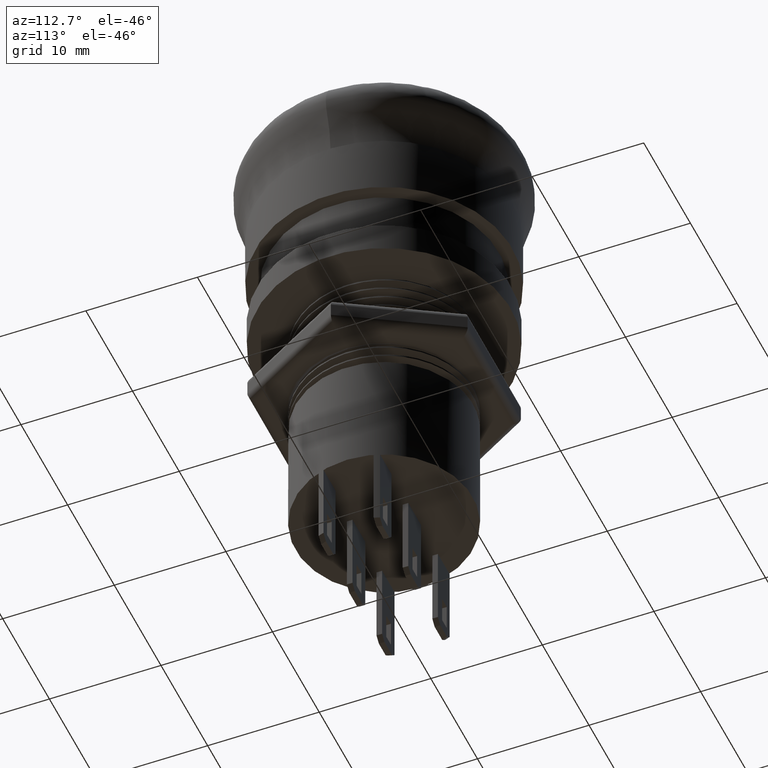
[diagram: clean part render]
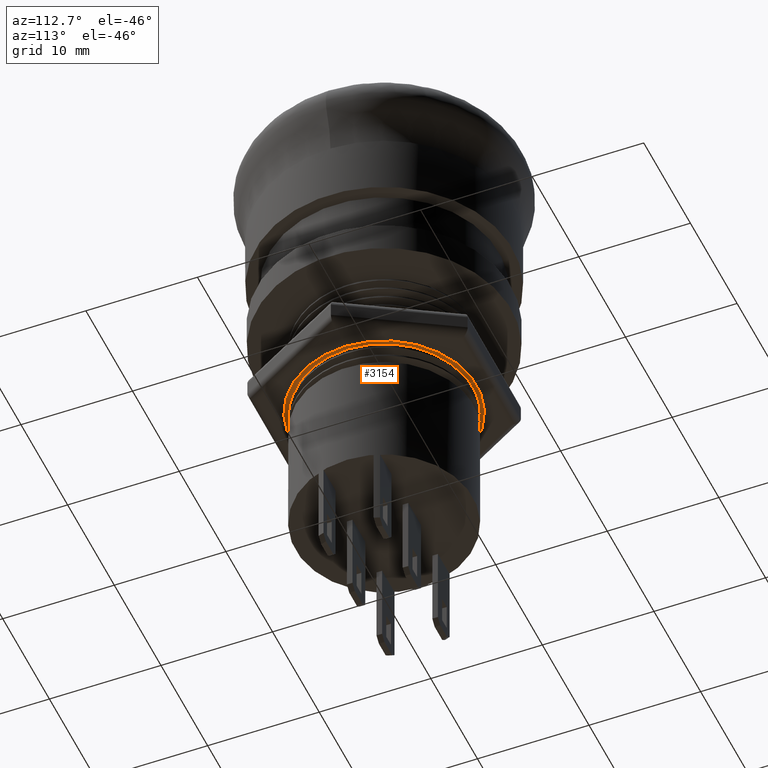
[diagram: same view with one face highlighted and labeled with its STEP entity id]
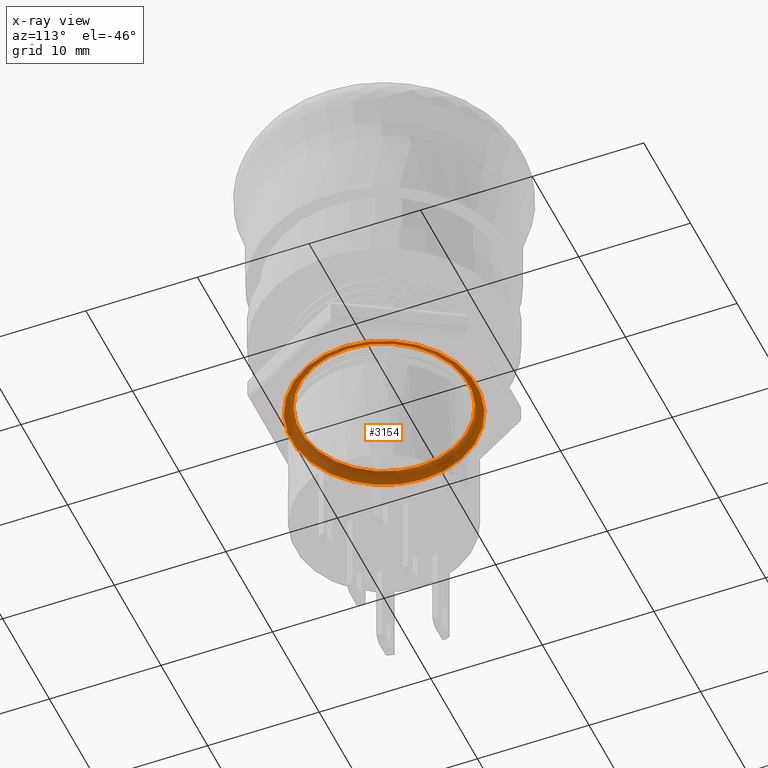
[diagram: x-ray of the same camera — body ghosted, the highlighted face saturated]
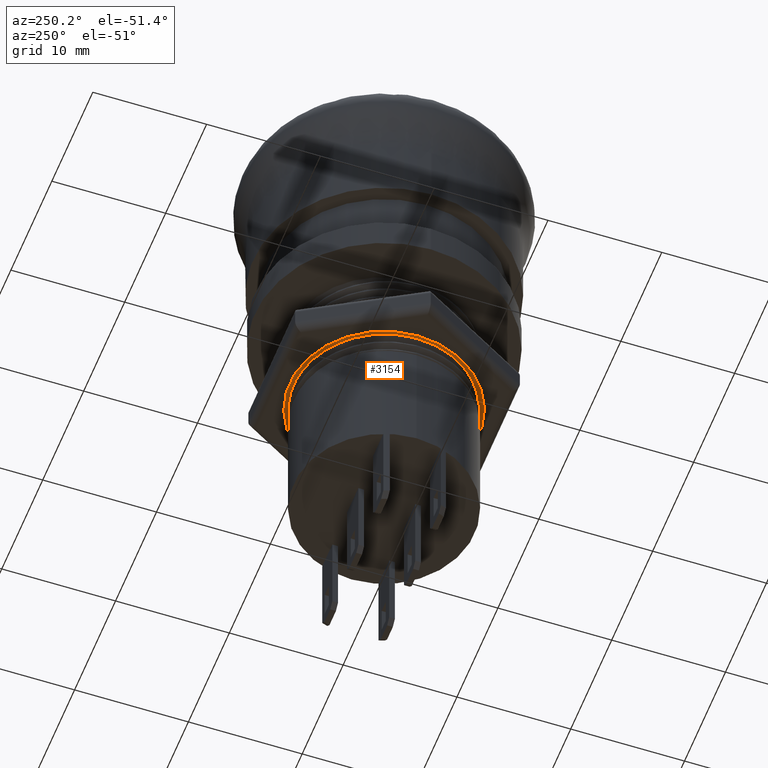
[diagram: same view with one face highlighted and labeled with its STEP entity id]
A machine part, auxiliary view. The second image highlights one B-rep face of the part: STEP entity #3154.
The next image is the same camera in x-ray: the body ghosted, the highlighted face saturated — about 64% of this face is hidden behind the body in this view.
A second angle (auxiliary view) of the same face is appended — the face is thin or edge-on in the first view.
In plain terms, the highlighted toroidal blend (fillet) surface has major radius 8.3 mm and minor (blend) radius 0.8 mm.
Its self-contained STEP definition (entity closure, byte-faithful):
#15=TOROIDAL_SURFACE('',#3405,8.3,0.8);
#179=CIRCLE('',#3404,8.3);
#180=CIRCLE('',#3406,7.5);
#181=CIRCLE('',#3407,0.8);
#182=CIRCLE('',#3408,7.5);
#395=FACE_OUTER_BOUND('',#594,.T.);
#594=EDGE_LOOP('',(#2708,#2709,#2710,#2711,#2712));
#1505=VERTEX_POINT('',#7847);
#1506=VERTEX_POINT('',#7850);
#1507=VERTEX_POINT('',#7851);
#1916=EDGE_CURVE('',#1505,#1505,#179,.T.);
#1917=EDGE_CURVE('',#1506,#1507,#180,.T.);
#1918=EDGE_CURVE('',#1507,#1505,#181,.T.);
#1919=EDGE_CURVE('',#1507,#1506,#182,.T.);
#2708=ORIENTED_EDGE('',*,*,#1917,.T.);
#2709=ORIENTED_EDGE('',*,*,#1918,.T.);
#2710=ORIENTED_EDGE('',*,*,#1916,.T.);
#2711=ORIENTED_EDGE('',*,*,#1918,.F.);
#2712=ORIENTED_EDGE('',*,*,#1919,.T.);
#3154=ADVANCED_FACE('',(#395),#15,.T.);
#3404=AXIS2_PLACEMENT_3D('',#7848,#4095,#4096);
#3405=AXIS2_PLACEMENT_3D('',#7849,#4097,#4098);
#3406=AXIS2_PLACEMENT_3D('',#7852,#4099,#4100);
#3407=AXIS2_PLACEMENT_3D('',#7853,#4101,#4102);
#3408=AXIS2_PLACEMENT_3D('',#7854,#4103,#4104);
#4095=DIRECTION('center_axis',(0.,0.,-1.));
#4096=DIRECTION('ref_axis',(1.,0.,0.));
#4097=DIRECTION('center_axis',(0.,0.,-1.));
#4098=DIRECTION('ref_axis',(-1.,0.,0.));
#4099=DIRECTION('center_axis',(0.,0.,1.));
#4100=DIRECTION('ref_axis',(1.,0.,0.));
#4101=DIRECTION('center_axis',(-1.22464679914735E-16,-1.,0.));
#4102=DIRECTION('ref_axis',(1.,-1.22464679914735E-16,0.));
#4103=DIRECTION('center_axis',(0.,0.,1.));
#4104=DIRECTION('ref_axis',(1.,0.,0.));
#7847=CARTESIAN_POINT('',(8.3,-1.0164568432923E-15,-28.));
#7848=CARTESIAN_POINT('Origin',(0.,0.,-28.));
#7849=CARTESIAN_POINT('Origin',(0.,0.,-27.2));
#7850=CARTESIAN_POINT('',(-7.5,-9.18485099360515E-16,-27.2));
#7851=CARTESIAN_POINT('',(7.5,-9.18485099360515E-16,-27.2));
#7852=CARTESIAN_POINT('Origin',(0.,0.,-27.2));
#7853=CARTESIAN_POINT('Origin',(8.3,-1.0164568432923E-15,-27.2));
#7854=CARTESIAN_POINT('Origin',(0.,0.,-27.2));